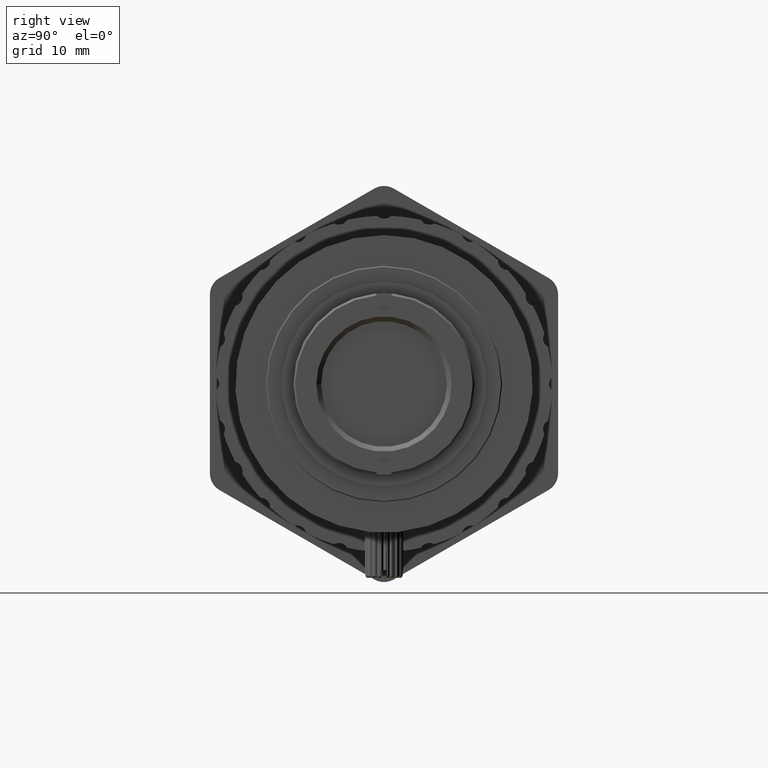
[diagram: clean part render]
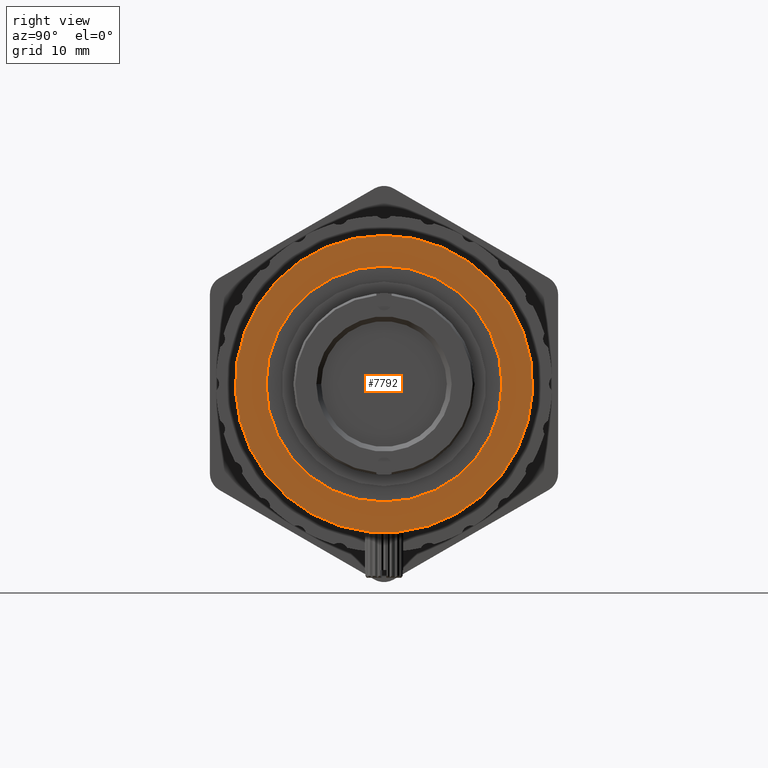
[diagram: same view with one face highlighted and labeled with its STEP entity id]
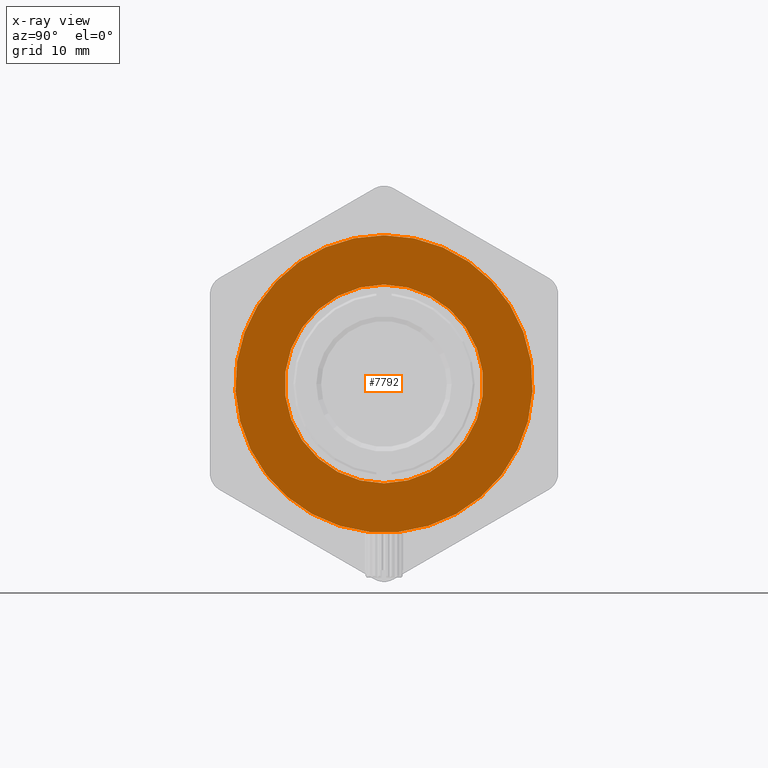
[diagram: x-ray of the same camera — body ghosted, the highlighted face saturated]
A machine part, right view. The second image highlights one B-rep face of the part: STEP entity #7792.
The next image is the same camera in x-ray: the body ghosted, the highlighted face saturated — about 0% of this face is hidden behind the body in this view.
In plain terms, the highlighted planar face has unit normal (-1, 0, 0).
Its self-contained STEP definition (entity closure, byte-faithful):
#193 = AXIS2_PLACEMENT_3D ( 'NONE', #3327, #5295, #4241 ) ;
#269 = CARTESIAN_POINT ( 'NONE',  ( 18.70409278854312518, 10531.32853251661254, -1.110223024625156540E-13 ) ) ;
#1165 = FACE_BOUND ( 'NONE', #4143, .T. ) ;
#1410 = EDGE_CURVE ( 'NONE', #11035, #11035, #8519, .T. ) ;
#2474 = VERTEX_POINT ( 'NONE', #4740 ) ;
#3011 = CARTESIAN_POINT ( 'NONE',  ( 18.70409278854312518, -0.6558685446016454534, 10.35595144912082688 ) ) ;
#3018 = AXIS2_PLACEMENT_3D ( 'NONE', #4741, #9442, #14031 ) ;
#3220 = EDGE_CURVE ( 'NONE', #2474, #2474, #6635, .T. ) ;
#3327 = CARTESIAN_POINT ( 'NONE',  ( 18.70409278854312518, -0.6558685446016454534, -1.110223024625156540E-13 ) ) ;
#3685 = ORIENTED_EDGE ( 'NONE', *, *, #3220, .F. ) ;
#4143 = EDGE_LOOP ( 'NONE', ( #9293 ) ) ;
#4241 = DIRECTION ( 'NONE',  ( 0.000000000000000000, 0.000000000000000000, 1.000000000000000000 ) ) ;
#4538 = PLANE ( 'NONE',  #11571 ) ;
#4740 = CARTESIAN_POINT ( 'NONE',  ( 18.70409278854312518, -0.6558685446016454534, 15.49999999985896082 ) ) ;
#4741 = CARTESIAN_POINT ( 'NONE',  ( 18.70409278854312518, -0.6558685446016454534, -1.110223024625156540E-13 ) ) ;
#5295 = DIRECTION ( 'NONE',  ( -1.000000000000000000, -0.000000000000000000, -0.000000000000000000 ) ) ;
#5958 = DIRECTION ( 'NONE',  ( 0.000000000000000000, 0.000000000000000000, 1.000000000000000000 ) ) ;
#6416 = EDGE_LOOP ( 'NONE', ( #3685 ) ) ;
#6635 = CIRCLE ( 'NONE', #193, 15.49999999985907095 ) ;
#7792 = ADVANCED_FACE ( 'NONE', ( #9245, #1165 ), #4538, .F. ) ;
#8519 = CIRCLE ( 'NONE', #3018, 10.35595144912093701 ) ;
#9245 = FACE_OUTER_BOUND ( 'NONE', #6416, .T. ) ;
#9293 = ORIENTED_EDGE ( 'NONE', *, *, #1410, .F. ) ;
#9442 = DIRECTION ( 'NONE',  ( 1.000000000000000000, 0.000000000000000000, 0.000000000000000000 ) ) ;
#11035 = VERTEX_POINT ( 'NONE', #3011 ) ;
#11425 = DIRECTION ( 'NONE',  ( -1.000000000000000000, 0.000000000000000000, 0.000000000000000000 ) ) ;
#11571 = AXIS2_PLACEMENT_3D ( 'NONE', #269, #11425, #5958 ) ;
#14031 = DIRECTION ( 'NONE',  ( 0.000000000000000000, 0.000000000000000000, 1.000000000000000000 ) ) ;